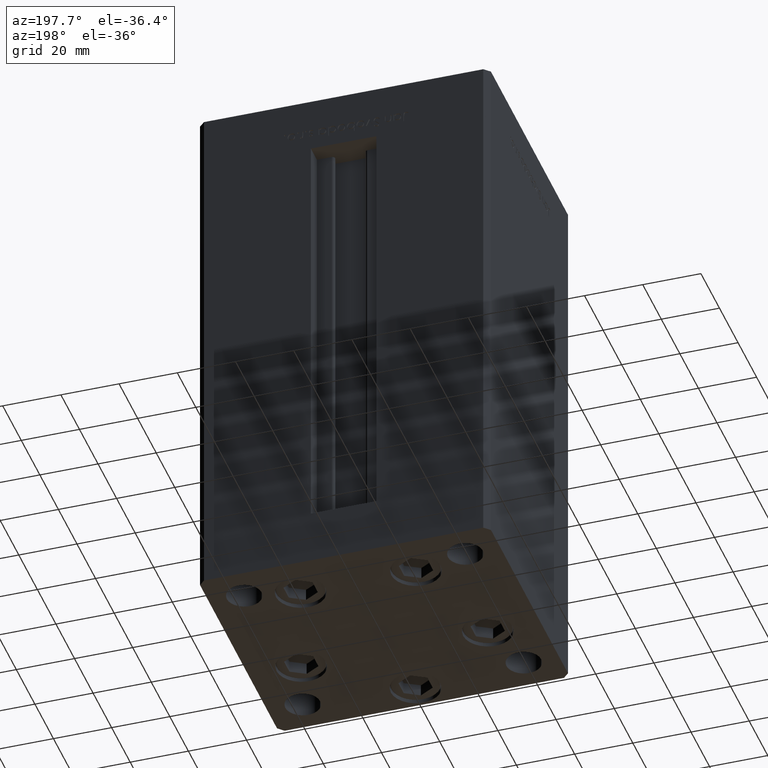
[diagram: clean part render]
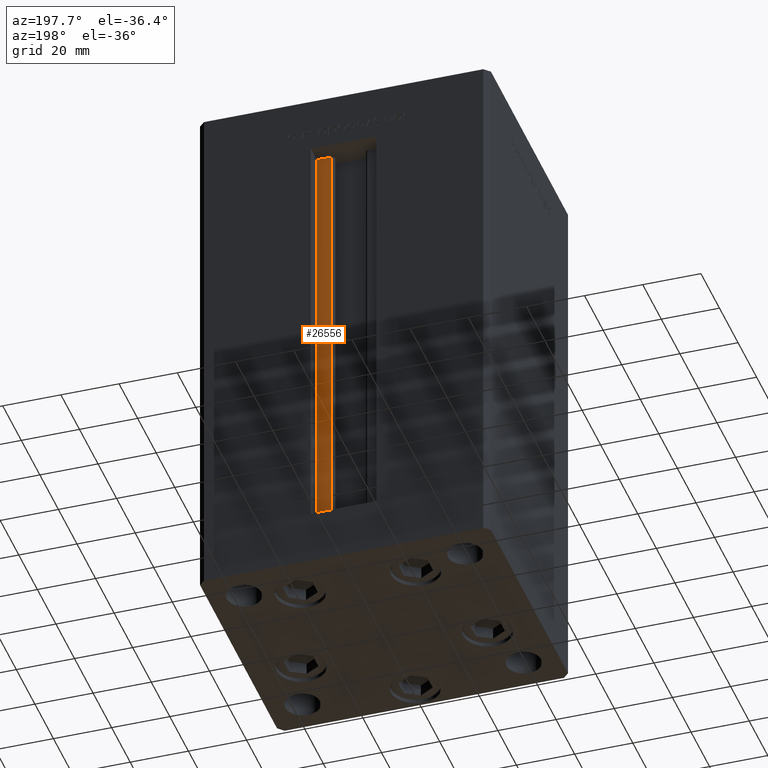
[diagram: same view with one face highlighted and labeled with its STEP entity id]
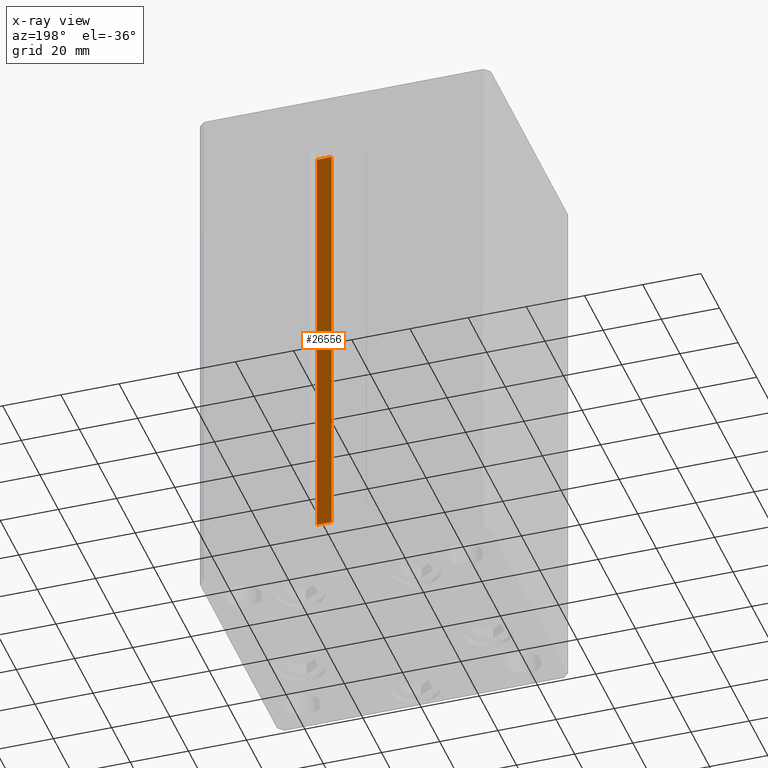
[diagram: x-ray of the same camera — body ghosted, the highlighted face saturated]
A machine part, auxiliary view. The second image highlights one B-rep face of the part: STEP entity #26556.
The next image is the same camera in x-ray: the body ghosted, the highlighted face saturated — about 0% of this face is hidden behind the body in this view.
In plain terms, the highlighted planar face has unit normal (0, -1, 0).
Its self-contained STEP definition (entity closure, byte-faithful):
#1137 = FACE_OUTER_BOUND ( 'NONE', #31031, .T. ) ;
#5683 = EDGE_CURVE ( 'NONE', #21586, #11618, #24087, .T. ) ;
#6414 = EDGE_CURVE ( 'NONE', #11618, #10487, #43345, .T. ) ;
#8998 = CARTESIAN_POINT ( 'NONE',  ( 6.183333333333997928, 36.99999999999999289, 0.000000000000000000 ) ) ;
#9976 = ORIENTED_EDGE ( 'NONE', *, *, #34834, .F. ) ;
#10487 = VERTEX_POINT ( 'NONE', #39035 ) ;
#11618 = VERTEX_POINT ( 'NONE', #42422 ) ;
#11722 = DIRECTION ( 'NONE',  ( -1.000000000000000000, 0.000000000000000000, 0.000000000000000000 ) ) ;
#12254 = PLANE ( 'NONE',  #28628 ) ;
#13052 = VECTOR ( 'NONE', #11722, 1000.000000000000000 ) ;
#13584 = ORIENTED_EDGE ( 'NONE', *, *, #6414, .F. ) ;
#14241 = VECTOR ( 'NONE', #49504, 1000.000000000000000 ) ;
#14474 = DIRECTION ( 'NONE',  ( -0.000000000000000000, -0.000000000000000000, 1.000000000000000000 ) ) ;
#15354 = VECTOR ( 'NONE', #14474, 1000.000000000000000 ) ;
#17249 = DIRECTION ( 'NONE',  ( 0.000000000000000000, -0.000000000000000000, -1.000000000000000000 ) ) ;
#20937 = CARTESIAN_POINT ( 'NONE',  ( 6.183333333333997928, 36.99999999999999289, 0.000000000000000000 ) ) ;
#21586 = VERTEX_POINT ( 'NONE', #31207 ) ;
#24087 = LINE ( 'NONE', #41450, #45850 ) ;
#24642 = DIRECTION ( 'NONE',  ( 0.000000000000000000, -1.000000000000000000, 0.000000000000000000 ) ) ;
#25102 = LINE ( 'NONE', #8998, #15354 ) ;
#25798 = CARTESIAN_POINT ( 'NONE',  ( 6.183333333333997928, 36.99999999999999289, 0.000000000000000000 ) ) ;
#26051 = ORIENTED_EDGE ( 'NONE', *, *, #5683, .F. ) ;
#26556 = ADVANCED_FACE ( 'NONE', ( #1137 ), #12254, .F. ) ;
#27296 = CARTESIAN_POINT ( 'NONE',  ( 0.000000000000000000, 36.99999999999999289, 148.5000000000000000 ) ) ;
#28628 = AXIS2_PLACEMENT_3D ( 'NONE', #20937, #24642, #17249 ) ;
#30282 = LINE ( 'NONE', #25798, #14241 ) ;
#31031 = EDGE_LOOP ( 'NONE', ( #26051, #9976, #43899, #13584 ) ) ;
#31207 = CARTESIAN_POINT ( 'NONE',  ( 11.24999999999999822, 36.99999999999999289, 0.000000000000000000 ) ) ;
#32250 = VERTEX_POINT ( 'NONE', #45592 ) ;
#32791 = DIRECTION ( 'NONE',  ( -0.000000000000000000, -0.000000000000000000, 1.000000000000000000 ) ) ;
#34834 = EDGE_CURVE ( 'NONE', #32250, #21586, #30282, .T. ) ;
#39035 = CARTESIAN_POINT ( 'NONE',  ( 6.183333333333997928, 36.99999999999999289, 148.5000000000000000 ) ) ;
#41450 = CARTESIAN_POINT ( 'NONE',  ( 11.24999999999999822, 36.99999999999999289, 0.000000000000000000 ) ) ;
#42422 = CARTESIAN_POINT ( 'NONE',  ( 11.24999999999999822, 36.99999999999999289, 148.5000000000000000 ) ) ;
#43345 = LINE ( 'NONE', #27296, #13052 ) ;
#43899 = ORIENTED_EDGE ( 'NONE', *, *, #48474, .T. ) ;
#45592 = CARTESIAN_POINT ( 'NONE',  ( 6.183333333333997928, 36.99999999999999289, 0.000000000000000000 ) ) ;
#45850 = VECTOR ( 'NONE', #32791, 1000.000000000000000 ) ;
#48474 = EDGE_CURVE ( 'NONE', #32250, #10487, #25102, .T. ) ;
#49504 = DIRECTION ( 'NONE',  ( 1.000000000000000000, 0.000000000000000000, 0.000000000000000000 ) ) ;